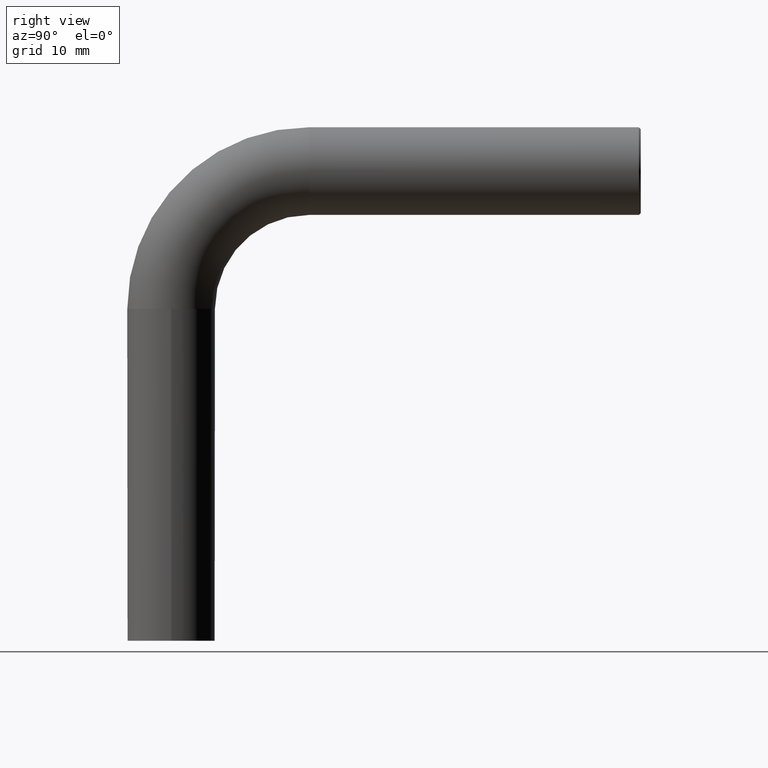
[diagram: clean part render]
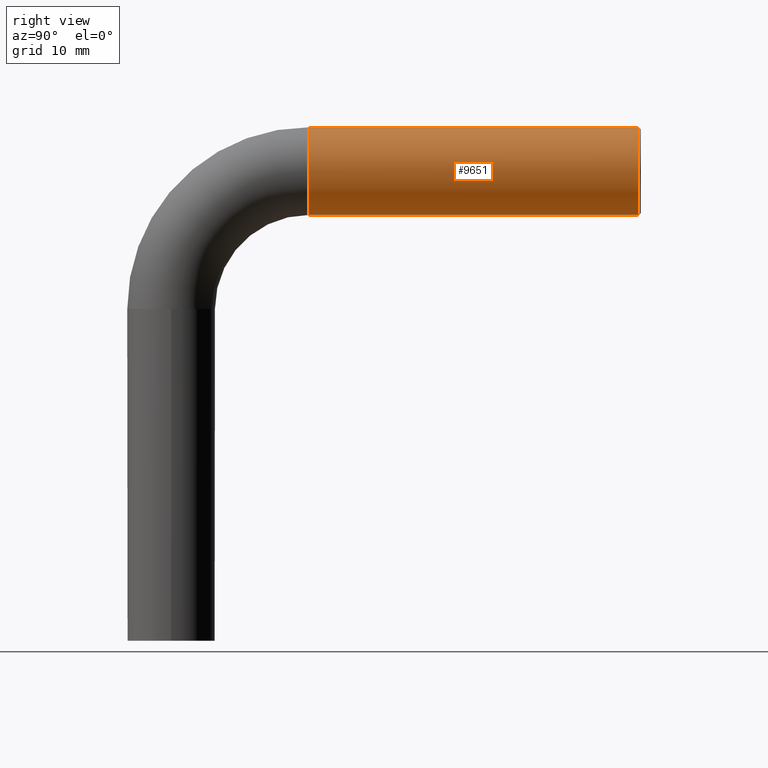
[diagram: same view with one face highlighted and labeled with its STEP entity id]
A machine part, right view. The second image highlights one B-rep face of the part: STEP entity #9651.
In plain terms, the highlighted cylindrical surface (partial cylindrical patch) has radius 7 mm, axis along (0, 1, 0).
Its self-contained STEP definition (entity closure, byte-faithful):
#213 = CIRCLE ( 'NONE', #7163, 7.000000000000000888 ) ;
#1512 = ORIENTED_EDGE ( 'NONE', *, *, #7827, .T. ) ;
#1654 = CARTESIAN_POINT ( 'NONE',  ( 0.000000000000000000, 22.00000000000026290, 82.00000000000000000 ) ) ;
#1813 = CARTESIAN_POINT ( 'NONE',  ( 8.572527594031474176E-16, 22.00000000000016342, 67.99999999999998579 ) ) ;
#2120 = CARTESIAN_POINT ( 'NONE',  ( 8.572527594031467273E-16, 22.00000000000006040, 67.99999999999998579 ) ) ;
#2613 = DIRECTION ( 'NONE',  ( 0.000000000000000000, -1.000000000000000000, 0.000000000000000000 ) ) ;
#2773 = AXIS2_PLACEMENT_3D ( 'NONE', #8871, #2613, #5853 ) ;
#2857 = DIRECTION ( 'NONE',  ( 0.000000000000000000, 1.000000000000000000, -1.459371158509469876E-14 ) ) ;
#2917 = VERTEX_POINT ( 'NONE', #1654 ) ;
#3288 = LINE ( 'NONE', #6329, #12559 ) ;
#3326 = LINE ( 'NONE', #1813, #4303 ) ;
#3955 = CARTESIAN_POINT ( 'NONE',  ( 0.000000000000000000, 22.00000000000016342, 75.00000000000000000 ) ) ;
#4303 = VECTOR ( 'NONE', #5902, 1000.000000000000000 ) ;
#5072 = ORIENTED_EDGE ( 'NONE', *, *, #5200, .T. ) ;
#5200 = EDGE_CURVE ( 'NONE', #6378, #13058, #3326, .T. ) ;
#5853 = DIRECTION ( 'NONE',  ( 0.000000000000000000, 0.000000000000000000, 1.000000000000000000 ) ) ;
#5902 = DIRECTION ( 'NONE',  ( 0.000000000000000000, 1.000000000000000000, 0.000000000000000000 ) ) ;
#6329 = CARTESIAN_POINT ( 'NONE',  ( 0.000000000000000000, 22.00000000000016342, 82.00000000000000000 ) ) ;
#6378 = VERTEX_POINT ( 'NONE', #2120 ) ;
#6542 = ORIENTED_EDGE ( 'NONE', *, *, #9229, .F. ) ;
#6873 = CIRCLE ( 'NONE', #2773, 7.000000000000006217 ) ;
#7163 = AXIS2_PLACEMENT_3D ( 'NONE', #3955, #2857, #9107 ) ;
#7751 = DIRECTION ( 'NONE',  ( 0.000000000000000000, 0.000000000000000000, 1.000000000000000000 ) ) ;
#7767 = EDGE_CURVE ( 'NONE', #13058, #12789, #6873, .T. ) ;
#7792 = CARTESIAN_POINT ( 'NONE',  ( 0.000000000000000000, 22.00000000000016342, 75.00000000000000000 ) ) ;
#7827 = EDGE_CURVE ( 'NONE', #2917, #6378, #213, .T. ) ;
#8106 = AXIS2_PLACEMENT_3D ( 'NONE', #7792, #11781, #7751 ) ;
#8871 = CARTESIAN_POINT ( 'NONE',  ( 0.000000000000000000, 74.70000000000001705, 75.00000000000000000 ) ) ;
#8913 = CARTESIAN_POINT ( 'NONE',  ( 8.572527594031467273E-16, 74.70000000000001705, 67.99999999999998579 ) ) ;
#9107 = DIRECTION ( 'NONE',  ( 1.000000000000000000, 0.000000000000000000, 0.000000000000000000 ) ) ;
#9229 = EDGE_CURVE ( 'NONE', #2917, #12789, #3288, .T. ) ;
#9651 = ADVANCED_FACE ( 'NONE', ( #11563 ), #11221, .T. ) ;
#10550 = CARTESIAN_POINT ( 'NONE',  ( 0.000000000000000000, 74.70000000000001705, 82.00000000000000000 ) ) ;
#11084 = EDGE_LOOP ( 'NONE', ( #1512, #5072, #12709, #6542 ) ) ;
#11221 = CYLINDRICAL_SURFACE ( 'NONE', #8106, 7.000000000000006217 ) ;
#11563 = FACE_OUTER_BOUND ( 'NONE', #11084, .T. ) ;
#11703 = DIRECTION ( 'NONE',  ( 0.000000000000000000, 1.000000000000000000, 0.000000000000000000 ) ) ;
#11781 = DIRECTION ( 'NONE',  ( 0.000000000000000000, 1.000000000000000000, 0.000000000000000000 ) ) ;
#12559 = VECTOR ( 'NONE', #11703, 1000.000000000000000 ) ;
#12709 = ORIENTED_EDGE ( 'NONE', *, *, #7767, .T. ) ;
#12789 = VERTEX_POINT ( 'NONE', #10550 ) ;
#13058 = VERTEX_POINT ( 'NONE', #8913 ) ;